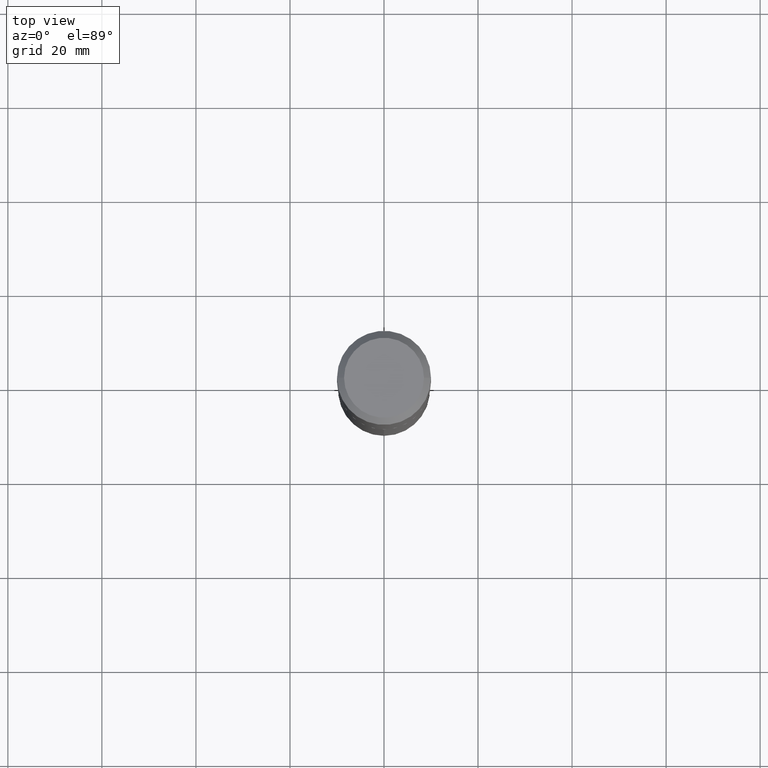
[diagram: clean part render]
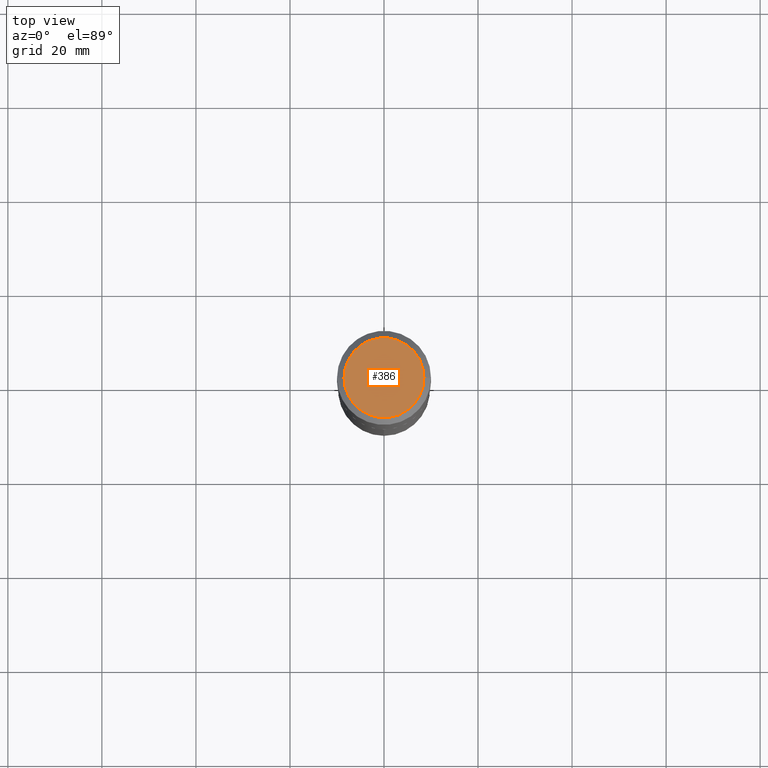
[diagram: same view with one face highlighted and labeled with its STEP entity id]
A machine part, top view. The second image highlights one B-rep face of the part: STEP entity #386.
In plain terms, the highlighted planar face has unit normal (0, -0, -1).
Its self-contained STEP definition (entity closure, byte-faithful):
#39 = DIRECTION ( 'NONE',  ( -1.000000000000000000, 6.982962677686265922E-15, -4.876176775795935793E-29 ) ) ;
#50 = VERTEX_POINT ( 'NONE', #391 ) ;
#84 = EDGE_CURVE ( 'NONE', #324, #50, #361, .T. ) ;
#98 = DIRECTION ( 'NONE',  ( 1.000000000000000000, -6.982962677686267499E-15, 4.876152824003125403E-29 ) ) ;
#115 = EDGE_LOOP ( 'NONE', ( #483, #321 ) ) ;
#129 = CARTESIAN_POINT ( 'NONE',  ( 0.3346450000000000258, -2.601499422326145188E-15, 4.096137381465387809E-18 ) ) ;
#146 = DIRECTION ( 'NONE',  ( -2.445468806185136597E-29, 3.491481338843145583E-15, 1.000000000000000000 ) ) ;
#154 = DIRECTION ( 'NONE',  ( 2.438088387897960049E-29, -3.491481338843145188E-15, -1.000000000000000000 ) ) ;
#211 = EDGE_CURVE ( 'NONE', #50, #324, #416, .T. ) ;
#215 = DIRECTION ( 'NONE',  ( 1.000000000000000000, -6.982962677686267499E-15, 4.876152824003125403E-29 ) ) ;
#228 = PLANE ( 'NONE',  #350 ) ;
#258 = AXIS2_PLACEMENT_3D ( 'NONE', #405, #373, #215 ) ;
#319 = CARTESIAN_POINT ( 'NONE',  ( -1.001697619218024707E-46, 1.430158722866394097E-32, 4.096137381448120692E-18 ) ) ;
#321 = ORIENTED_EDGE ( 'NONE', *, *, #84, .T. ) ;
#324 = VERTEX_POINT ( 'NONE', #129 ) ;
#350 = AXIS2_PLACEMENT_3D ( 'NONE', #382, #154, #39 ) ;
#361 = CIRCLE ( 'NONE', #258, 0.3346450000000000258 ) ;
#373 = DIRECTION ( 'NONE',  ( -2.445468806185136597E-29, 3.491481338843145583E-15, 1.000000000000000000 ) ) ;
#375 = FACE_OUTER_BOUND ( 'NONE', #115, .T. ) ;
#382 = CARTESIAN_POINT ( 'NONE',  ( -5.008488096090123536E-47, 7.150793614331970485E-33, 2.048068690724060346E-18 ) ) ;
#386 = ADVANCED_FACE ( 'NONE', ( #375 ), #228, .F. ) ;
#391 = CARTESIAN_POINT ( 'NONE',  ( -0.3346450000000000258, 2.439908260507010921E-15, 4.096137381431418257E-18 ) ) ;
#405 = CARTESIAN_POINT ( 'NONE',  ( -1.001697619218024707E-46, 1.430158722866394097E-32, 4.096137381448120692E-18 ) ) ;
#416 = CIRCLE ( 'NONE', #464, 0.3346450000000000258 ) ;
#464 = AXIS2_PLACEMENT_3D ( 'NONE', #319, #146, #98 ) ;
#483 = ORIENTED_EDGE ( 'NONE', *, *, #211, .T. ) ;